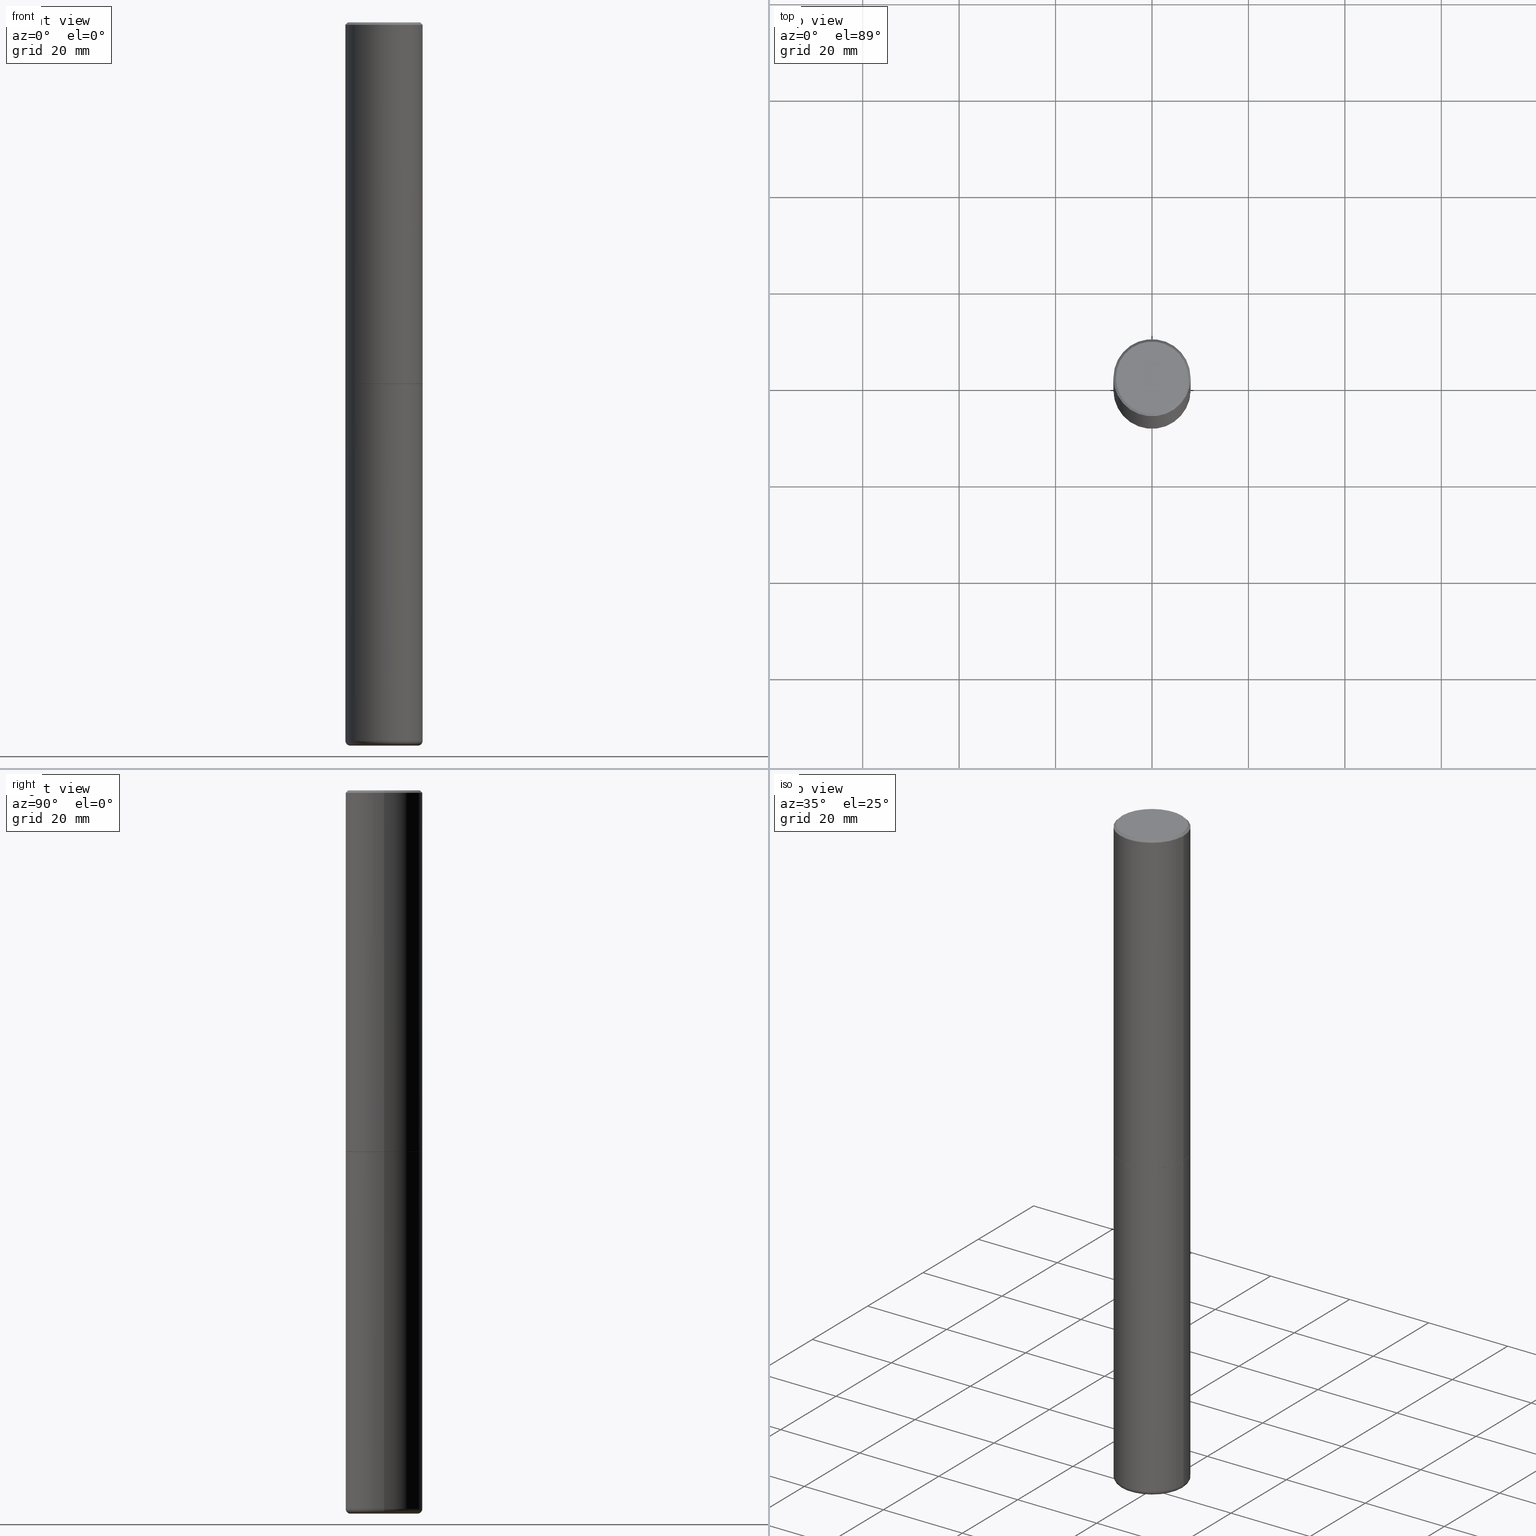
[diagram: canonical four-view strip — front | top / right | iso, engineering-drawing reading convention]
A machine part, canonical four-view strip (front | top / right | iso — engineering-drawing reading convention). The complete STEP part file that produces these views, byte-faithful:
ISO-10303-21;
HEADER;
FILE_DESCRIPTION (( 'STEP AP203' ),
    '1' );
FILE_NAME ('42693.STEP',
    '2024-03-04T02:14:53',
    ( '' ),
    ( '' ),
    'SwSTEP 2.0',
    'SolidWorks 2023',
    '' );
FILE_SCHEMA (( 'CONFIG_CONTROL_DESIGN' ));
ENDSEC;

DATA;
#1 = DIRECTION ( 'NONE',  ( -2.445468806185136597E-29, 3.491481338843145583E-15, 1.000000000000000000 ) ) ;
#2 = ORIENTED_EDGE ( 'NONE', *, *, #276, .T. ) ;
#3 = VECTOR ( 'NONE', #82, 39.37007874015748143 ) ;
#4 = CARTESIAN_POINT ( 'NONE',  ( -6.785034193178928885E-45, 9.687230607472908306E-31, 2.774533118565267485E-16 ) ) ;
#5 = ORIENTED_EDGE ( 'NONE', *, *, #58, .T. ) ;
#6 = LINE ( 'NONE', #145, #3 ) ;
#7 = PERSON_AND_ORGANIZATION_ROLE ( 'design_supplier' ) ;
#8 = DIRECTION ( 'NONE',  ( 1.000000000000000000, -6.982962677686266711E-15, 0.000000000000000000 ) ) ;
#9 = TOROIDAL_SURFACE ( 'NONE', #74, 0.2755500000000000171, 0.03939999999999978936 ) ;
#10 = CIRCLE ( 'NONE', #229, 0.3149500000000003408 ) ;
#11 = APPROVAL_PERSON_ORGANIZATION ( #114, #225, #175 ) ;
#12 = CARTESIAN_POINT ( 'NONE',  ( 0.3149500000000000077, -1.250858104453944331E-14, -2.952700000000000102 ) ) ;
#13 = PERSON_AND_ORGANIZATION_ROLE ( 'creator' ) ;
#14 = CARTESIAN_POINT ( 'NONE',  ( 0.3149500000000001743, -2.199284095337290660E-15, 1.535751875536930690E-29 ) ) ;
#15 = PERSON_AND_ORGANIZATION_ROLE ( 'classification_officer' ) ;
#16 = LINE ( 'NONE', #216, #308 ) ;
#17 = DIRECTION ( 'NONE',  ( -2.445468806185136597E-29, 3.491481338843145583E-15, 1.000000000000000000 ) ) ;
#18 = PERSON ( 'UNSPECIFIED', 'UNSPECIFIED', 'UNSPECIFIED', ('UNSPECIFIED'), ('UNSPECIFIED'), ('UNSPECIFIED') ) ;
#19 = CARTESIAN_POINT ( 'NONE',  ( -0.3139500000000000068, -8.073249575935096849E-15, -2.952700000000000102 ) ) ;
#20 = DIRECTION ( 'NONE',  ( -2.445468806185136597E-29, 3.491481338843145583E-15, 1.000000000000000000 ) ) ;
#21 = AXIS2_PLACEMENT_3D ( 'NONE', #24, #282, #283 ) ;
#22 = CC_DESIGN_SECURITY_CLASSIFICATION ( #203, ( #188 ) ) ;
#23 = EDGE_CURVE ( 'NONE', #265, #357, #267, .T. ) ;
#24 = CARTESIAN_POINT ( 'NONE',  ( 7.220735744022852519E-29, -1.030929694920215502E-14, -2.952700000000000102 ) ) ;
#25 = DIRECTION ( 'NONE',  ( 1.000000000000000000, -6.982962677686265922E-15, 4.874125435057328359E-29 ) ) ;
#26 = CARTESIAN_POINT ( 'NONE',  ( 0.000000000000000000, 0.000000000000000000, 0.000000000000000000 ) ) ;
#27 = EDGE_LOOP ( 'NONE', ( #65, #55, #384, #164 ) ) ;
#28 = CONICAL_SURFACE ( 'NONE', #98, 0.3139500000000000068, 0.7853981633977213939 ) ;
#29 = CYLINDRICAL_SURFACE ( 'NONE', #136, 0.3149500000000001743 ) ;
#30 = ORIENTED_EDGE ( 'NONE', *, *, #251, .F. ) ;
#31 = DIRECTION ( 'NONE',  ( -2.445468806185136597E-29, 3.491481338843145583E-15, 1.000000000000000000 ) ) ;
#32 = ORIENTED_EDGE ( 'NONE', *, *, #79, .T. ) ;
#33 = APPLICATION_CONTEXT ( 'configuration controlled 3d designs of mechanical parts and assemblies' ) ;
#34 = CARTESIAN_POINT ( 'NONE',  ( 7.220735744022852519E-29, -1.030929694920215502E-14, -2.952700000000000102 ) ) ;
#35 = VERTEX_POINT ( 'NONE', #118 ) ;
#36 = CIRCLE ( 'NONE', #321, 0.3149500000000003408 ) ;
#37 = CLOSED_SHELL ( 'NONE', ( #263, #173, #179, #247, #71, #339 ) ) ;
#38 = CC_DESIGN_PERSON_AND_ORGANIZATION_ASSIGNMENT ( #303, #271, ( #188 ) ) ;
#39 = UNCERTAINTY_MEASURE_WITH_UNIT (LENGTH_MEASURE( 1.000000000000000082E-05 ), #389, 'distance_accuracy_value', 'NONE');
#40 = AXIS2_PLACEMENT_3D ( 'NONE', #43, #368, #85 ) ;
#41 = SECURITY_CLASSIFICATION_LEVEL ( 'unclassified' ) ;
#42 = ORIENTED_EDGE ( 'NONE', *, *, #411, .F. ) ;
#43 = CARTESIAN_POINT ( 'NONE',  ( 4.890937612370289799E-31, -6.982962677686315028E-17, -0.02000000000000006981 ) ) ;
#44 = VECTOR ( 'NONE', #115, 39.37007874015748143 ) ;
#45 =( GEOMETRIC_REPRESENTATION_CONTEXT ( 3 ) GLOBAL_UNCERTAINTY_ASSIGNED_CONTEXT ( ( #39 ) ) GLOBAL_UNIT_ASSIGNED_CONTEXT ( ( #389, #322, #69 ) ) REPRESENTATION_CONTEXT ( 'NONE', 'WORKASPACE' ) );
#46 = DATE_AND_TIME ( #331, #144 ) ;
#47 = APPROVAL_PERSON_ORGANIZATION ( #205, #176, #72 ) ;
#48 = COORDINATED_UNIVERSAL_TIME_OFFSET ( 5, 0, .BEHIND. ) ;
#49 = DIRECTION ( 'NONE',  ( 1.000000000000000000, -6.982962677686263555E-15, 0.000000000000000000 ) ) ;
#50 = EDGE_CURVE ( 'NONE', #89, #357, #172, .T. ) ;
#51 = CARTESIAN_POINT ( 'NONE',  ( 0.000000000000000000, 0.000000000000000000, 0.000000000000000000 ) ) ;
#52 = EDGE_CURVE ( 'NONE', #377, #265, #78, .T. ) ;
#53 = AXIS2_PLACEMENT_3D ( 'NONE', #34, #67, #158 ) ;
#54 = CARTESIAN_POINT ( 'NONE',  ( 1.444171603492632270E-28, -2.061894304653819197E-14, -5.905499999999999972 ) ) ;
#55 = ORIENTED_EDGE ( 'NONE', *, *, #101, .T. ) ;
#56 = DIRECTION ( 'NONE',  ( -1.000000000000000000, 6.982962677686265922E-15, -4.876176775795935793E-29 ) ) ;
#57 = CARTESIAN_POINT ( 'NONE',  ( -0.2755500000000000171, -1.852347817340081696E-14, -5.866100000000000314 ) ) ;
#58 = EDGE_CURVE ( 'NONE', #89, #377, #36, .T. ) ;
#59 = ORIENTED_EDGE ( 'NONE', *, *, #249, .T. ) ;
#60 = FACE_OUTER_BOUND ( 'NONE', #185, .T. ) ;
#61 = AXIS2_PLACEMENT_3D ( 'NONE', #57, #310, #315 ) ;
#62 = ORIENTED_EDGE ( 'NONE', *, *, #23, .F. ) ;
#63 = EDGE_CURVE ( 'NONE', #357, #265, #328, .T. ) ;
#64 = DIRECTION ( 'NONE',  ( 0.000000000000000000, 0.000000000000000000, 1.000000000000000000 ) ) ;
#65 = ORIENTED_EDGE ( 'NONE', *, *, #152, .T. ) ;
#66 = ORIENTED_EDGE ( 'NONE', *, *, #223, .F. ) ;
#67 = DIRECTION ( 'NONE',  ( -2.445468806185136597E-29, 3.491481338843145583E-15, 1.000000000000000000 ) ) ;
#68 = ORIENTED_EDGE ( 'NONE', *, *, #52, .F. ) ;
#69 =( NAMED_UNIT ( * ) SI_UNIT ( $, .STERADIAN. ) SOLID_ANGLE_UNIT ( ) );
#70 = ORIENTED_EDGE ( 'NONE', *, *, #63, .T. ) ;
#71 = ADVANCED_FACE ( 'NONE', ( #369 ), #9, .T. ) ;
#72 = APPROVAL_ROLE ( '' ) ;
#73 = ORIENTED_EDGE ( 'NONE', *, *, #23, .T. ) ;
#74 = AXIS2_PLACEMENT_3D ( 'NONE', #86, #215, #397 ) ;
#75 = CONICAL_SURFACE ( 'NONE', #112, 0.3149499999999998967, 0.7853981633974471688 ) ;
#76 = EDGE_CURVE ( 'NONE', #132, #198, #307, .T. ) ;
#77 = PERSON_AND_ORGANIZATION_ROLE ( 'design_owner' ) ;
#78 = LINE ( 'NONE', #14, #211 ) ;
#79 = EDGE_CURVE ( 'NONE', #320, #103, #405, .T. ) ;
#80 = CARTESIAN_POINT ( 'NONE',  ( 7.220735744022852519E-29, -1.030929694920215502E-14, -2.952700000000000102 ) ) ;
#81 = APPROVAL_STATUS ( 'not_yet_approved' ) ;
#82 = DIRECTION ( 'NONE',  ( -0.7071067811865466846, 2.468850131082247989E-15, -0.7071067811865483499 ) ) ;
#83 = AXIS2_PLACEMENT_3D ( 'NONE', #54, #20, #248 ) ;
#84 = DATE_TIME_ROLE ( 'creation_date' ) ;
#85 = DIRECTION ( 'NONE',  ( -1.000000000000000000, 6.982962677686265922E-15, 0.000000000000000000 ) ) ;
#86 = CARTESIAN_POINT ( 'NONE',  ( 1.434536456396262923E-28, -2.048137868178777591E-14, -5.866100000000000314 ) ) ;
#87 = PRODUCT_RELATED_PRODUCT_CATEGORY ( 'detail', '', ( #230 ) ) ;
#88 = DIRECTION ( 'NONE',  ( 1.000000000000000000, -6.982962677686266711E-15, 0.000000000000000000 ) ) ;
#89 = VERTEX_POINT ( 'NONE', #147 ) ;
#90 = CONICAL_SURFACE ( 'NONE', #196, 0.3139500000000000068, 0.7853981633977213939 ) ;
#91 = DIRECTION ( 'NONE',  ( -6.982962677686266711E-15, -1.000000000000000000, 3.491481338843145583E-15 ) ) ;
#92 = ADVANCED_FACE ( 'NONE', ( #304 ), #28, .T. ) ;
#93 = CARTESIAN_POINT ( 'NONE',  ( 7.218290275216666916E-29, -1.030580546786331359E-14, -2.951700000000000212 ) ) ;
#94 = EDGE_LOOP ( 'NONE', ( #224, #194, #62, #68 ) ) ;
#95 = CARTESIAN_POINT ( 'NONE',  ( -0.3149500000000000077, 2.237854346276435590E-15, -1.549218606675782676E-29 ) ) ;
#96 = DIRECTION ( 'NONE',  ( 1.000000000000000000, -6.982962677686263555E-15, 0.000000000000000000 ) ) ;
#97 = AXIS2_PLACEMENT_3D ( 'NONE', #26, #390, #355 ) ;
#98 = AXIS2_PLACEMENT_3D ( 'NONE', #80, #168, #8 ) ;
#99 = FACE_OUTER_BOUND ( 'NONE', #134, .T. ) ;
#100 = ORIENTED_EDGE ( 'NONE', *, *, #393, .T. ) ;
#101 = EDGE_CURVE ( 'NONE', #320, #89, #141, .T. ) ;
#102 = DIRECTION ( 'NONE',  ( -2.445468806185136597E-29, 3.491481338843145583E-15, 1.000000000000000000 ) ) ;
#103 = VERTEX_POINT ( 'NONE', #396 ) ;
#104 = DESIGN_CONTEXT ( 'detailed design', #192, 'design' ) ;
#105 = CARTESIAN_POINT ( 'NONE',  ( -0.3149499999999998967, 2.129454468560425784E-15, -0.02000000000000006981 ) ) ;
#106 = ORIENTED_EDGE ( 'NONE', *, *, #411, .T. ) ;
#107 = AXIS2_PLACEMENT_3D ( 'NONE', #348, #64, #239 ) ;
#108 = SHAPE_DEFINITION_REPRESENTATION ( #120, #122 ) ;
#109 = VERTEX_POINT ( 'NONE', #12 ) ;
#110 = APPROVAL_ROLE ( '' ) ;
#111 = ADVANCED_FACE ( 'NONE', ( #332 ), #243, .T. ) ;
#112 = AXIS2_PLACEMENT_3D ( 'NONE', #257, #326, #226 ) ;
#113 = DIRECTION ( 'NONE',  ( 1.000000000000000000, -6.982962677686265922E-15, 0.000000000000000000 ) ) ;
#114 = PERSON_AND_ORGANIZATION ( #18, #309 ) ;
#115 = DIRECTION ( 'NONE',  ( -0.7071067811867406405, 7.493145998871051513E-15, 0.7071067811863543939 ) ) ;
#116 = CIRCLE ( 'NONE', #61, 0.03939999999999978936 ) ;
#117 = EDGE_CURVE ( 'NONE', #135, #357, #6, .T. ) ;
#118 = CARTESIAN_POINT ( 'NONE',  ( 0.2949499999999996014, -2.127023677808857708E-15, 2.774533118565413425E-16 ) ) ;
#119 = LINE ( 'NONE', #95, #222 ) ;
#120 = PRODUCT_DEFINITION_SHAPE ( 'NONE', 'NONE',  #337 ) ;
#121 = ORIENTED_EDGE ( 'NONE', *, *, #209, .T. ) ;
#122 = ADVANCED_BREP_SHAPE_REPRESENTATION ( '42693', ( #234, #232, #107 ), #45 ) ;
#123 = DIRECTION ( 'NONE',  ( 1.000000000000000000, -6.982962677686268288E-15, 0.000000000000000000 ) ) ;
#124 = AXIS2_PLACEMENT_3D ( 'NONE', #334, #302, #299 ) ;
#125 = TOROIDAL_SURFACE ( 'NONE', #341, 0.2755500000000000171, 0.03939999999999978936 ) ;
#126 = LINE ( 'NONE', #250, #212 ) ;
#127 = CARTESIAN_POINT ( 'NONE',  ( 7.220735744022852519E-29, -1.030929694920215502E-14, -2.952700000000000102 ) ) ;
#128 = CARTESIAN_POINT ( 'NONE',  ( 0.2755500000000000171, -2.254309841237464499E-14, -5.905499999999999972 ) ) ;
#129 = EDGE_CURVE ( 'NONE', #162, #290, #314, .T. ) ;
#130 = ORIENTED_EDGE ( 'NONE', *, *, #58, .F. ) ;
#131 = DIRECTION ( 'NONE',  ( 1.000000000000000000, -6.982962677686265922E-15, 4.876176775795935793E-29 ) ) ;
#132 = VERTEX_POINT ( 'NONE', #128 ) ;
#133 = DIRECTION ( 'NONE',  ( 2.438088387897960049E-29, -3.491481338843145188E-15, -1.000000000000000000 ) ) ;
#134 = EDGE_LOOP ( 'NONE', ( #286, #5, #231, #206 ) ) ;
#135 = VERTEX_POINT ( 'NONE', #220 ) ;
#136 = AXIS2_PLACEMENT_3D ( 'NONE', #385, #102, #316 ) ;
#137 = FACE_OUTER_BOUND ( 'NONE', #382, .T. ) ;
#138 = ORIENTED_EDGE ( 'NONE', *, *, #366, .T. ) ;
#139 = EDGE_LOOP ( 'NONE', ( #106, #138 ) ) ;
#140 = APPROVAL_STATUS ( 'not_yet_approved' ) ;
#141 = LINE ( 'NONE', #269, #44 ) ;
#142 = AXIS2_PLACEMENT_3D ( 'NONE', #400, #238, #210 ) ;
#143 = AXIS2_PLACEMENT_3D ( 'NONE', #409, #217, #218 ) ;
#144 = LOCAL_TIME ( 21, 14, 53.00000000000000000, #363 ) ;
#145 = CARTESIAN_POINT ( 'NONE',  ( -0.3149499999999998967, 2.129454468560425784E-15, -0.02000000000000006981 ) ) ;
#146 = COORDINATED_UNIVERSAL_TIME_OFFSET ( 5, 0, .BEHIND. ) ;
#147 = CARTESIAN_POINT ( 'NONE',  ( -0.3149500000000003408, -2.949963201043647330E-15, -2.951700000000000212 ) ) ;
#148 = CC_DESIGN_PERSON_AND_ORGANIZATION_ASSIGNMENT ( #305, #13, ( #337 ) ) ;
#149 = COORDINATED_UNIVERSAL_TIME_OFFSET ( 5, 0, .BEHIND. ) ;
#150 = EDGE_LOOP ( 'NONE', ( #346, #219, #274, #246 ) ) ;
#151 = LOCAL_TIME ( 21, 14, 53.00000000000000000, #48 ) ;
#152 = EDGE_CURVE ( 'NONE', #103, #320, #202, .T. ) ;
#153 = CYLINDRICAL_SURFACE ( 'NONE', #143, 0.3149500000000000077 ) ;
#154 = CARTESIAN_POINT ( 'NONE',  ( 1.434536456396262923E-28, -2.048137868178777591E-14, -5.866100000000000314 ) ) ;
#155 = AXIS2_PLACEMENT_3D ( 'NONE', #214, #336, #49 ) ;
#156 = PLANE ( 'NONE',  #21 ) ;
#157 = DIRECTION ( 'NONE',  ( -2.445468806185136597E-29, 3.491481338843145583E-15, 1.000000000000000000 ) ) ;
#158 = DIRECTION ( 'NONE',  ( 1.000000000000000000, -6.982962677686263555E-15, 0.000000000000000000 ) ) ;
#159 = VECTOR ( 'NONE', #344, 39.37007874015748143 ) ;
#160 = EDGE_LOOP ( 'NONE', ( #59, #100 ) ) ;
#161 = CARTESIAN_POINT ( 'NONE',  ( 0.3149500000000003408, -1.250508956320060661E-14, -2.951700000000000212 ) ) ;
#162 = VERTEX_POINT ( 'NONE', #407 ) ;
#163 = CARTESIAN_POINT ( 'NONE',  ( -6.785034193178928885E-45, 9.687230607472908306E-31, 2.774533118565267485E-16 ) ) ;
#164 = ORIENTED_EDGE ( 'NONE', *, *, #276, .F. ) ;
#165 = CARTESIAN_POINT ( 'NONE',  ( 7.220735744022852519E-29, -1.030929694920215502E-14, -2.952700000000000102 ) ) ;
#166 = ORIENTED_EDGE ( 'NONE', *, *, #221, .F. ) ;
#167 = CIRCLE ( 'NONE', #394, 0.2949499999999996014 ) ;
#168 = DIRECTION ( 'NONE',  ( -2.445468806185136597E-29, 3.491481338843145583E-15, 1.000000000000000000 ) ) ;
#169 = DATE_TIME_ROLE ( 'classification_date' ) ;
#170 = DIRECTION ( 'NONE',  ( 1.000000000000000000, -6.982962677686268288E-15, 0.000000000000000000 ) ) ;
#171 = DATE_AND_TIME ( #335, #281 ) ;
#172 = LINE ( 'NONE', #207, #387 ) ;
#173 = ADVANCED_FACE ( 'NONE', ( #252 ), #125, .T. ) ;
#174 = CC_DESIGN_APPROVAL ( #176, ( #337 ) ) ;
#175 = APPROVAL_ROLE ( '' ) ;
#176 = APPROVAL ( #333, 'UNSPECIFIED' ) ;
#177 = DATE_AND_TIME ( #237, #151 ) ;
#178 = DIRECTION ( 'NONE',  ( -2.445468806185136597E-29, 3.491481338843145583E-15, 1.000000000000000000 ) ) ;
#179 = ADVANCED_FACE ( 'NONE', ( #378 ), #156, .F. ) ;
#180 = DIRECTION ( 'NONE',  ( -2.445468806185136597E-29, 3.491481338843145583E-15, 1.000000000000000000 ) ) ;
#181 = AXIS2_PLACEMENT_3D ( 'NONE', #127, #157, #88 ) ;
#182 = APPROVAL ( #140, 'UNSPECIFIED' ) ;
#183 = DIRECTION ( 'NONE',  ( 1.000000000000000000, -6.982962677686263555E-15, 0.000000000000000000 ) ) ;
#184 = CARTESIAN_POINT ( 'NONE',  ( 2.059624841783561302E-15, 0.2949499999999996014, -8.910857649635209254E-16 ) ) ;
#185 = EDGE_LOOP ( 'NONE', ( #166, #200, #244, #236 ) ) ;
#186 = CARTESIAN_POINT ( 'NONE',  ( 0.3149500000000000077, -2.199284095337289871E-15, 1.535751875536930130E-29 ) ) ;
#187 = AXIS2_PLACEMENT_3D ( 'NONE', #4, #324, #353 ) ;
#188 = PRODUCT_DEFINITION_FORMATION_WITH_SPECIFIED_SOURCE ( 'ANY', '', #230, .NOT_KNOWN. ) ;
#189 = CYLINDRICAL_SURFACE ( 'NONE', #268, 0.3149500000000000077 ) ;
#190 = CC_DESIGN_PERSON_AND_ORGANIZATION_ASSIGNMENT ( #399, #7, ( #188 ) ) ;
#191 =( LENGTH_UNIT ( ) NAMED_UNIT ( * ) SI_UNIT ( $, .METRE. ) );
#192 = APPLICATION_CONTEXT ( 'configuration controlled 3d designs of mechanical parts and assemblies' ) ;
#193 = DIRECTION ( 'NONE',  ( 0.7071067811865466846, -7.319954787623252890E-15, -0.7071067811865483499 ) ) ;
#194 = ORIENTED_EDGE ( 'NONE', *, *, #50, .T. ) ;
#195 = LENGTH_MEASURE_WITH_UNIT ( LENGTH_MEASURE( 0.02539999999999999897 ), #191 );
#196 = AXIS2_PLACEMENT_3D ( 'NONE', #165, #31, #264 ) ;
#197 = APPROVAL_PERSON_ORGANIZATION ( #361, #182, #110 ) ;
#198 = VERTEX_POINT ( 'NONE', #280 ) ;
#199 = CARTESIAN_POINT ( 'NONE',  ( -0.3149500000000000077, -1.315748346921853027E-14, -2.952700000000000102 ) ) ;
#200 = ORIENTED_EDGE ( 'NONE', *, *, #291, .T. ) ;
#201 = COORDINATED_UNIVERSAL_TIME_OFFSET ( 5, 0, .BEHIND. ) ;
#202 = CIRCLE ( 'NONE', #181, 0.3139500000000000068 ) ;
#203 = SECURITY_CLASSIFICATION ( '', '', #41 ) ;
#204 = EDGE_CURVE ( 'NONE', #377, #89, #10, .T. ) ;
#205 = PERSON_AND_ORGANIZATION ( #18, #309 ) ;
#206 = ORIENTED_EDGE ( 'NONE', *, *, #63, .F. ) ;
#207 = CARTESIAN_POINT ( 'NONE',  ( -0.3149500000000001743, 2.237854346276436774E-15, -1.549218606675783237E-29 ) ) ;
#208 = APPLICATION_PROTOCOL_DEFINITION ( 'international standard', 'config_control_design', 1994, #192 ) ;
#209 = EDGE_CURVE ( 'NONE', #198, #290, #116, .T. ) ;
#210 = DIRECTION ( 'NONE',  ( 1.000000000000000000, -6.982962677686265922E-15, 0.000000000000000000 ) ) ;
#211 = VECTOR ( 'NONE', #270, 39.37007874015748143 ) ;
#212 = VECTOR ( 'NONE', #193, 39.37007874015748143 ) ;
#213 = PERSON_AND_ORGANIZATION ( #18, #309 ) ;
#214 = CARTESIAN_POINT ( 'NONE',  ( 1.434536456396262923E-28, -2.048137868178777591E-14, -5.866100000000000314 ) ) ;
#215 = DIRECTION ( 'NONE',  ( -2.445468806185136597E-29, 3.491481338843145583E-15, 1.000000000000000000 ) ) ;
#216 = CARTESIAN_POINT ( 'NONE',  ( 0.3139500000000000068, -1.250159808186175887E-14, -2.952700000000000102 ) ) ;
#217 = DIRECTION ( 'NONE',  ( -2.445468806185136597E-29, 3.491481338843145583E-15, 1.000000000000000000 ) ) ;
#218 = DIRECTION ( 'NONE',  ( 1.000000000000000000, -6.982962677686266711E-15, 4.876176775795936353E-29 ) ) ;
#219 = ORIENTED_EDGE ( 'NONE', *, *, #251, .T. ) ;
#220 = CARTESIAN_POINT ( 'NONE',  ( -0.2949499999999996014, 2.094539655171994135E-15, 2.774533118565122532E-16 ) ) ;
#221 = EDGE_CURVE ( 'NONE', #290, #359, #119, .T. ) ;
#222 = VECTOR ( 'NONE', #379, 39.37007874015748143 ) ;
#223 = EDGE_CURVE ( 'NONE', #162, #109, #338, .T. ) ;
#224 = ORIENTED_EDGE ( 'NONE', *, *, #204, .T. ) ;
#225 = APPROVAL ( #81, 'UNSPECIFIED' ) ;
#226 = DIRECTION ( 'NONE',  ( -1.000000000000000000, 6.982962677686265922E-15, 0.000000000000000000 ) ) ;
#227 = ORIENTED_EDGE ( 'NONE', *, *, #117, .F. ) ;
#228 = DIRECTION ( 'NONE',  ( -1.000000000000000000, 6.982962677686265922E-15, -4.876176775795935793E-29 ) ) ;
#229 = AXIS2_PLACEMENT_3D ( 'NONE', #93, #311, #123 ) ;
#230 = PRODUCT ( '42693', '42693', '', ( #395 ) ) ;
#231 = ORIENTED_EDGE ( 'NONE', *, *, #52, .T. ) ;
#232 = MANIFOLD_SOLID_BREP ( 'Body-Move/Copy2[2]', #242 ) ;
#233 = CYLINDRICAL_SURFACE ( 'NONE', #97, 0.3149500000000001743 ) ;
#234 = MANIFOLD_SOLID_BREP ( 'Body-Move/Copy2[1]', #37 ) ;
#235 = CIRCLE ( 'NONE', #254, 0.03939999999999978936 ) ;
#236 = ORIENTED_EDGE ( 'NONE', *, *, #393, .F. ) ;
#237 = CALENDAR_DATE ( 2024, 3, 3 ) ;
#238 = DIRECTION ( 'NONE',  ( -2.445468806185136597E-29, 3.491481338843145583E-15, 1.000000000000000000 ) ) ;
#239 = DIRECTION ( 'NONE',  ( 1.000000000000000000, 0.000000000000000000, 0.000000000000000000 ) ) ;
#240 = CALENDAR_DATE ( 2024, 3, 3 ) ;
#241 = DIRECTION ( 'NONE',  ( 1.000000000000000000, -6.982962677686266711E-15, 0.000000000000000000 ) ) ;
#242 = CLOSED_SHELL ( 'NONE', ( #402, #352, #111, #408, #372, #92, #330, #312 ) ) ;
#243 = CONICAL_SURFACE ( 'NONE', #40, 0.3149499999999998967, 0.7853981633974471688 ) ;
#244 = ORIENTED_EDGE ( 'NONE', *, *, #223, .T. ) ;
#245 = CARTESIAN_POINT ( 'NONE',  ( 1.434536456396262923E-28, -2.048137868178777591E-14, -5.866100000000000314 ) ) ;
#246 = ORIENTED_EDGE ( 'NONE', *, *, #291, .F. ) ;
#247 = ADVANCED_FACE ( 'NONE', ( #60 ), #153, .T. ) ;
#248 = DIRECTION ( 'NONE',  ( 1.000000000000000000, -6.982962677686268288E-15, 0.000000000000000000 ) ) ;
#249 = EDGE_CURVE ( 'NONE', #109, #359, #345, .T. ) ;
#250 = CARTESIAN_POINT ( 'NONE',  ( 0.3149499999999998967, -2.230543471175006266E-15, -0.02000000000000006981 ) ) ;
#251 = EDGE_CURVE ( 'NONE', #198, #132, #388, .T. ) ;
#252 = FACE_OUTER_BOUND ( 'NONE', #258, .T. ) ;
#253 = DIRECTION ( 'NONE',  ( -2.445468806185136597E-29, 3.491481338843145583E-15, 1.000000000000000000 ) ) ;
#254 = AXIS2_PLACEMENT_3D ( 'NONE', #373, #91, #404 ) ;
#255 = ORIENTED_EDGE ( 'NONE', *, *, #101, .F. ) ;
#256 = CC_DESIGN_PERSON_AND_ORGANIZATION_ASSIGNMENT ( #329, #77, ( #230 ) ) ;
#257 = CARTESIAN_POINT ( 'NONE',  ( 4.890937612370289799E-31, -6.982962677686315028E-17, -0.02000000000000006981 ) ) ;
#258 = EDGE_LOOP ( 'NONE', ( #386, #121, #323, #288 ) ) ;
#259 = PLANE ( 'NONE',  #261 ) ;
#260 = ORIENTED_EDGE ( 'NONE', *, *, #249, .F. ) ;
#261 = AXIS2_PLACEMENT_3D ( 'NONE', #289, #133, #228 ) ;
#262 = EDGE_LOOP ( 'NONE', ( #255, #32, #2, #130 ) ) ;
#263 = ADVANCED_FACE ( 'NONE', ( #343 ), #189, .T. ) ;
#264 = DIRECTION ( 'NONE',  ( 1.000000000000000000, -6.982962677686266711E-15, 0.000000000000000000 ) ) ;
#265 = VERTEX_POINT ( 'NONE', #342 ) ;
#266 = CARTESIAN_POINT ( 'NONE',  ( 7.220735744022852519E-29, -1.030929694920215502E-14, -2.952700000000000102 ) ) ;
#267 = CIRCLE ( 'NONE', #142, 0.3149499999999998967 ) ;
#268 = AXIS2_PLACEMENT_3D ( 'NONE', #51, #180, #306 ) ;
#269 = CARTESIAN_POINT ( 'NONE',  ( -0.3139500000000000068, -8.078548030283319251E-15, -2.952700000000000102 ) ) ;
#270 = DIRECTION ( 'NONE',  ( -2.445468806185136877E-29, 3.491481338843145188E-15, 1.000000000000000000 ) ) ;
#271 = PERSON_AND_ORGANIZATION_ROLE ( 'creator' ) ;
#272 = DIRECTION ( 'NONE',  ( -2.445468806185136597E-29, 3.491481338843145583E-15, 1.000000000000000000 ) ) ;
#273 = DATE_AND_TIME ( #240, #275 ) ;
#274 = ORIENTED_EDGE ( 'NONE', *, *, #318, .T. ) ;
#275 = LOCAL_TIME ( 21, 14, 53.00000000000000000, #149 ) ;
#276 = EDGE_CURVE ( 'NONE', #103, #377, #16, .T. ) ;
#277 = DIRECTION ( 'NONE',  ( 0.7071067811867406405, -2.468850131084279700E-15, 0.7071067811863543939 ) ) ;
#278 = ORIENTED_EDGE ( 'NONE', *, *, #366, .F. ) ;
#279 = PLANE ( 'NONE',  #358 ) ;
#280 = CARTESIAN_POINT ( 'NONE',  ( -0.2755500000000000171, -1.845228343683128963E-14, -5.905499999999999972 ) ) ;
#281 = LOCAL_TIME ( 21, 14, 53.00000000000000000, #146 ) ;
#282 = DIRECTION ( 'NONE',  ( 2.438088387897960049E-29, -3.491481338843145188E-15, -1.000000000000000000 ) ) ;
#283 = DIRECTION ( 'NONE',  ( -1.000000000000000000, 6.982962677686265922E-15, -4.876176775795935793E-29 ) ) ;
#284 = ORIENTED_EDGE ( 'NONE', *, *, #152, .F. ) ;
#285 = FACE_OUTER_BOUND ( 'NONE', #416, .T. ) ;
#286 = ORIENTED_EDGE ( 'NONE', *, *, #50, .F. ) ;
#287 = FACE_OUTER_BOUND ( 'NONE', #27, .T. ) ;
#288 = ORIENTED_EDGE ( 'NONE', *, *, #318, .F. ) ;
#289 = CARTESIAN_POINT ( 'NONE',  ( 1.444171603492632270E-28, -2.061894304653819197E-14, -5.905499999999999972 ) ) ;
#290 = VERTEX_POINT ( 'NONE', #401 ) ;
#291 = EDGE_CURVE ( 'NONE', #290, #162, #375, .T. ) ;
#292 = CARTESIAN_POINT ( 'NONE',  ( 7.220735744022852519E-29, -1.030929694920215502E-14, -2.952700000000000102 ) ) ;
#293 = AXIS2_PLACEMENT_3D ( 'NONE', #313, #17, #96 ) ;
#294 = ORIENTED_EDGE ( 'NONE', *, *, #129, .T. ) ;
#295 = DATE_AND_TIME ( #300, #381 ) ;
#296 = CARTESIAN_POINT ( 'NONE',  ( 7.218290275216666916E-29, -1.030580546786331359E-14, -2.951700000000000212 ) ) ;
#297 = APPROVAL_DATE_TIME ( #171, #176 ) ;
#298 = CC_DESIGN_DATE_AND_TIME_ASSIGNMENT ( #46, #84, ( #337 ) ) ;
#299 = DIRECTION ( 'NONE',  ( 1.000000000000000000, -6.982962677686268288E-15, 0.000000000000000000 ) ) ;
#300 = CALENDAR_DATE ( 2024, 3, 3 ) ;
#301 = CIRCLE ( 'NONE', #53, 0.3149500000000000077 ) ;
#302 = DIRECTION ( 'NONE',  ( -2.445468806185136597E-29, 3.491481338843145583E-15, 1.000000000000000000 ) ) ;
#303 = PERSON_AND_ORGANIZATION ( #18, #309 ) ;
#304 = FACE_OUTER_BOUND ( 'NONE', #262, .T. ) ;
#305 = PERSON_AND_ORGANIZATION ( #18, #309 ) ;
#306 = DIRECTION ( 'NONE',  ( 1.000000000000000000, -6.982962677686266711E-15, 4.876176775795936353E-29 ) ) ;
#307 = CIRCLE ( 'NONE', #124, 0.2755500000000000171 ) ;
#308 = VECTOR ( 'NONE', #277, 39.37007874015748143 ) ;
#309 = ORGANIZATION ( 'UNSPECIFIED', 'UNSPECIFIED', '' ) ;
#310 = DIRECTION ( 'NONE',  ( 7.105427357601001859E-15, 1.000000000000000000, -3.491481338843145583E-15 ) ) ;
#311 = DIRECTION ( 'NONE',  ( -2.445468806185136597E-29, 3.491481338843145583E-15, 1.000000000000000000 ) ) ;
#312 = ADVANCED_FACE ( 'NONE', ( #340 ), #279, .F. ) ;
#313 = CARTESIAN_POINT ( 'NONE',  ( 7.220735744022852519E-29, -1.030929694920215502E-14, -2.952700000000000102 ) ) ;
#314 = CIRCLE ( 'NONE', #155, 0.3149500000000000077 ) ;
#315 = DIRECTION ( 'NONE',  ( -1.000000000000000000, 7.105427357600965571E-15, 0.000000000000000000 ) ) ;
#316 = DIRECTION ( 'NONE',  ( 1.000000000000000000, -6.982962677686265922E-15, 4.876176775795935232E-29 ) ) ;
#317 = ORIENTED_EDGE ( 'NONE', *, *, #325, .F. ) ;
#318 = EDGE_CURVE ( 'NONE', #132, #162, #235, .T. ) ;
#319 = FACE_OUTER_BOUND ( 'NONE', #350, .T. ) ;
#320 = VERTEX_POINT ( 'NONE', #19 ) ;
#321 = AXIS2_PLACEMENT_3D ( 'NONE', #296, #272, #170 ) ;
#322 =( NAMED_UNIT ( * ) PLANE_ANGLE_UNIT ( ) SI_UNIT ( $, .RADIAN. ) );
#323 = ORIENTED_EDGE ( 'NONE', *, *, #129, .F. ) ;
#324 = DIRECTION ( 'NONE',  ( -2.445468806185136597E-29, 3.491481338843145583E-15, 1.000000000000000000 ) ) ;
#325 = EDGE_CURVE ( 'NONE', #35, #265, #126, .T. ) ;
#326 = DIRECTION ( 'NONE',  ( 2.445468806185136597E-29, -3.491481338843145583E-15, -1.000000000000000000 ) ) ;
#327 = ORIENTED_EDGE ( 'NONE', *, *, #325, .T. ) ;
#328 = CIRCLE ( 'NONE', #374, 0.3149499999999998967 ) ;
#329 = PERSON_AND_ORGANIZATION ( #18, #309 ) ;
#330 = ADVANCED_FACE ( 'NONE', ( #319 ), #415, .F. ) ;
#331 = CALENDAR_DATE ( 2024, 3, 3 ) ;
#332 = FACE_OUTER_BOUND ( 'NONE', #418, .T. ) ;
#333 = APPROVAL_STATUS ( 'not_yet_approved' ) ;
#334 = CARTESIAN_POINT ( 'NONE',  ( 1.444171603492632270E-28, -2.061894304653819197E-14, -5.905499999999999972 ) ) ;
#335 = CALENDAR_DATE ( 2024, 3, 3 ) ;
#336 = DIRECTION ( 'NONE',  ( -2.445468806185136597E-29, 3.491481338843145583E-15, 1.000000000000000000 ) ) ;
#337 = PRODUCT_DEFINITION ( 'UNKNOWN', '', #188, #104 ) ;
#338 = LINE ( 'NONE', #186, #159 ) ;
#339 = ADVANCED_FACE ( 'NONE', ( #137 ), #259, .T. ) ;
#340 = FACE_OUTER_BOUND ( 'NONE', #139, .T. ) ;
#341 = AXIS2_PLACEMENT_3D ( 'NONE', #154, #253, #376 ) ;
#342 = CARTESIAN_POINT ( 'NONE',  ( 0.3149499999999998967, -2.230543471175006266E-15, -0.02000000000000006981 ) ) ;
#343 = FACE_OUTER_BOUND ( 'NONE', #412, .T. ) ;
#344 = DIRECTION ( 'NONE',  ( -2.445468806185136877E-29, 3.491481338843145188E-15, 1.000000000000000000 ) ) ;
#345 = CIRCLE ( 'NONE', #293, 0.3149500000000000077 ) ;
#346 = ORIENTED_EDGE ( 'NONE', *, *, #209, .F. ) ;
#347 = CC_DESIGN_PERSON_AND_ORGANIZATION_ASSIGNMENT ( #213, #15, ( #203 ) ) ;
#348 = CARTESIAN_POINT ( 'NONE',  ( 0.000000000000000000, 0.000000000000000000, 0.000000000000000000 ) ) ;
#349 = ORIENTED_EDGE ( 'NONE', *, *, #117, .T. ) ;
#350 = EDGE_LOOP ( 'NONE', ( #284, #391 ) ) ;
#351 = AXIS2_PLACEMENT_3D ( 'NONE', #266, #392, #241 ) ;
#352 = ADVANCED_FACE ( 'NONE', ( #417 ), #29, .T. ) ;
#353 = DIRECTION ( 'NONE',  ( 1.000000000000000000, -6.982962677686265922E-15, 4.874125435057328359E-29 ) ) ;
#354 = ORIENTED_EDGE ( 'NONE', *, *, #221, .T. ) ;
#355 = DIRECTION ( 'NONE',  ( 1.000000000000000000, -6.982962677686265922E-15, 4.876176775795935232E-29 ) ) ;
#356 = APPROVAL_DATE_TIME ( #177, #225 ) ;
#357 = VERTEX_POINT ( 'NONE', #105 ) ;
#358 = AXIS2_PLACEMENT_3D ( 'NONE', #184, #403, #56 ) ;
#359 = VERTEX_POINT ( 'NONE', #199 ) ;
#360 = DIMENSIONAL_EXPONENTS ( 1.000000000000000000, 0.000000000000000000, 0.000000000000000000, 0.000000000000000000, 0.000000000000000000, 0.000000000000000000, 0.000000000000000000 ) ;
#361 = PERSON_AND_ORGANIZATION ( #18, #309 ) ;
#362 = DIRECTION ( 'NONE',  ( -2.445468806185136877E-29, 3.491481338843145188E-15, 1.000000000000000000 ) ) ;
#363 = COORDINATED_UNIVERSAL_TIME_OFFSET ( 5, 0, .BEHIND. ) ;
#364 = CARTESIAN_POINT ( 'NONE',  ( 4.890937612370289799E-31, -6.982962677686315028E-17, -0.02000000000000006981 ) ) ;
#365 = APPROVAL_DATE_TIME ( #295, #182 ) ;
#366 = EDGE_CURVE ( 'NONE', #35, #135, #413, .T. ) ;
#367 = AXIS2_PLACEMENT_3D ( 'NONE', #245, #370, #183 ) ;
#368 = DIRECTION ( 'NONE',  ( 2.445468806185136597E-29, -3.491481338843145583E-15, -1.000000000000000000 ) ) ;
#369 = FACE_OUTER_BOUND ( 'NONE', #150, .T. ) ;
#370 = DIRECTION ( 'NONE',  ( -2.445468806185136597E-29, 3.491481338843145583E-15, 1.000000000000000000 ) ) ;
#371 = ORIENTED_EDGE ( 'NONE', *, *, #76, .F. ) ;
#372 = ADVANCED_FACE ( 'NONE', ( #99 ), #233, .T. ) ;
#373 = CARTESIAN_POINT ( 'NONE',  ( 0.2755500000000000171, -2.240553404762422893E-14, -5.866100000000000314 ) ) ;
#374 = AXIS2_PLACEMENT_3D ( 'NONE', #364, #178, #113 ) ;
#375 = CIRCLE ( 'NONE', #367, 0.3149500000000000077 ) ;
#376 = DIRECTION ( 'NONE',  ( 1.000000000000000000, -6.982962677686268288E-15, 4.883557194083113462E-29 ) ) ;
#377 = VERTEX_POINT ( 'NONE', #161 ) ;
#378 = FACE_OUTER_BOUND ( 'NONE', #160, .T. ) ;
#379 = DIRECTION ( 'NONE',  ( -2.445468806185136877E-29, 3.491481338843145188E-15, 1.000000000000000000 ) ) ;
#380 = CC_DESIGN_APPROVAL ( #225, ( #188 ) ) ;
#381 = LOCAL_TIME ( 21, 14, 53.00000000000000000, #201 ) ;
#382 = EDGE_LOOP ( 'NONE', ( #371, #30 ) ) ;
#383 = DIRECTION ( 'NONE',  ( -2.438088387897960049E-29, 3.491481338843145188E-15, 1.000000000000000000 ) ) ;
#384 = ORIENTED_EDGE ( 'NONE', *, *, #204, .F. ) ;
#385 = CARTESIAN_POINT ( 'NONE',  ( 0.000000000000000000, 0.000000000000000000, 0.000000000000000000 ) ) ;
#386 = ORIENTED_EDGE ( 'NONE', *, *, #76, .T. ) ;
#387 = VECTOR ( 'NONE', #362, 39.37007874015748143 ) ;
#388 = CIRCLE ( 'NONE', #83, 0.2755500000000000171 ) ;
#389 =( CONVERSION_BASED_UNIT ( 'INCH', #195 ) LENGTH_UNIT ( ) NAMED_UNIT ( #360 ) );
#390 = DIRECTION ( 'NONE',  ( -2.445468806185136597E-29, 3.491481338843145583E-15, 1.000000000000000000 ) ) ;
#391 = ORIENTED_EDGE ( 'NONE', *, *, #79, .F. ) ;
#392 = DIRECTION ( 'NONE',  ( -2.445468806185136597E-29, 3.491481338843145583E-15, 1.000000000000000000 ) ) ;
#393 = EDGE_CURVE ( 'NONE', #359, #109, #301, .T. ) ;
#394 = AXIS2_PLACEMENT_3D ( 'NONE', #163, #1, #25 ) ;
#395 = MECHANICAL_CONTEXT ( 'NONE', #33, 'mechanical' ) ;
#396 = CARTESIAN_POINT ( 'NONE',  ( 0.3139500000000000068, -1.250159808186175887E-14, -2.952700000000000102 ) ) ;
#397 = DIRECTION ( 'NONE',  ( 1.000000000000000000, -6.982962677686268288E-15, 4.883557194083113462E-29 ) ) ;
#398 = CC_DESIGN_DATE_AND_TIME_ASSIGNMENT ( #273, #169, ( #203 ) ) ;
#399 = PERSON_AND_ORGANIZATION ( #18, #309 ) ;
#400 = CARTESIAN_POINT ( 'NONE',  ( 4.890937612370289799E-31, -6.982962677686315028E-17, -0.02000000000000006981 ) ) ;
#401 = CARTESIAN_POINT ( 'NONE',  ( -0.3149499999999998967, -1.824352433551134308E-14, -5.866100000000000314 ) ) ;
#402 = ADVANCED_FACE ( 'NONE', ( #287 ), #90, .T. ) ;
#403 = DIRECTION ( 'NONE',  ( 2.438088387897960049E-29, -3.491481338843145188E-15, -1.000000000000000000 ) ) ;
#404 = DIRECTION ( 'NONE',  ( 1.000000000000000000, -6.982962677686266711E-15, 0.000000000000000000 ) ) ;
#405 = CIRCLE ( 'NONE', #351, 0.3139500000000000068 ) ;
#406 = AXIS2_PLACEMENT_3D ( 'NONE', #292, #383, #131 ) ;
#407 = CARTESIAN_POINT ( 'NONE',  ( 0.3149499999999998967, -2.268066277712506420E-14, -5.866100000000000314 ) ) ;
#408 = ADVANCED_FACE ( 'NONE', ( #285 ), #75, .T. ) ;
#409 = CARTESIAN_POINT ( 'NONE',  ( 0.000000000000000000, 0.000000000000000000, 0.000000000000000000 ) ) ;
#410 = APPLICATION_PROTOCOL_DEFINITION ( 'international standard', 'config_control_design', 1994, #33 ) ;
#411 = EDGE_CURVE ( 'NONE', #135, #35, #167, .T. ) ;
#412 = EDGE_LOOP ( 'NONE', ( #294, #354, #260, #66 ) ) ;
#413 = CIRCLE ( 'NONE', #187, 0.2949499999999996014 ) ;
#414 = CC_DESIGN_APPROVAL ( #182, ( #203 ) ) ;
#415 = PLANE ( 'NONE',  #406 ) ;
#416 = EDGE_LOOP ( 'NONE', ( #317, #42, #349, #70 ) ) ;
#417 = FACE_OUTER_BOUND ( 'NONE', #94, .T. ) ;
#418 = EDGE_LOOP ( 'NONE', ( #278, #327, #73, #227 ) ) ;
ENDSEC;
END-ISO-10303-21;
